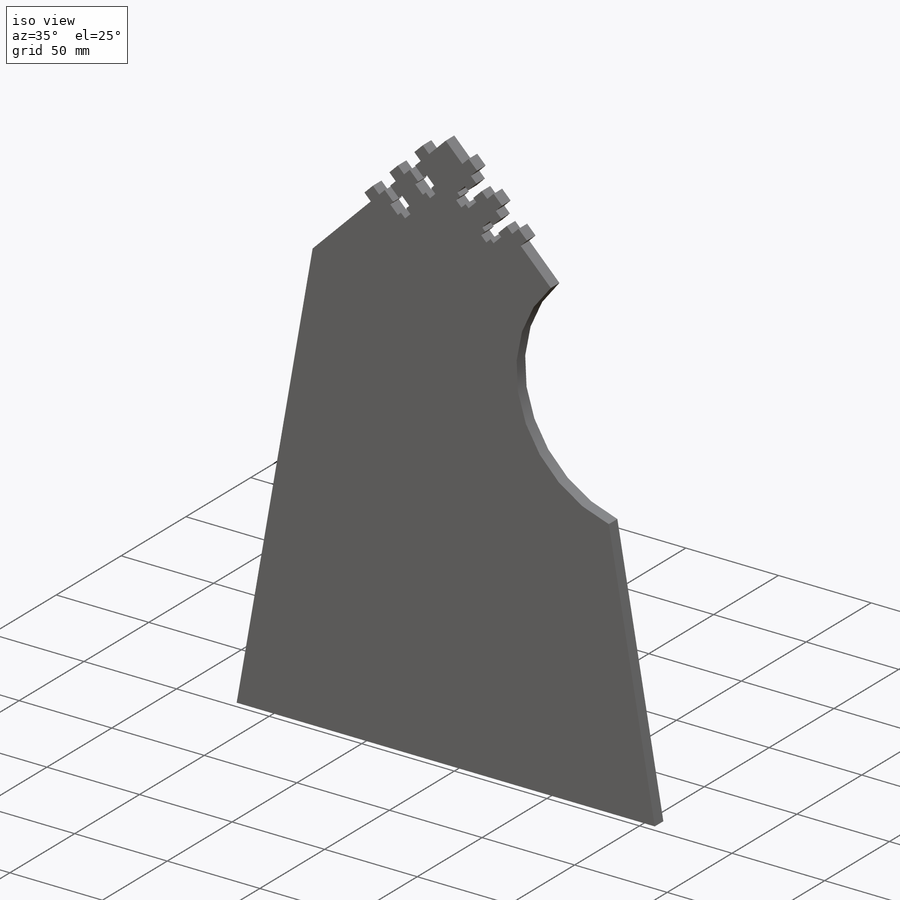
[diagram: iso view]
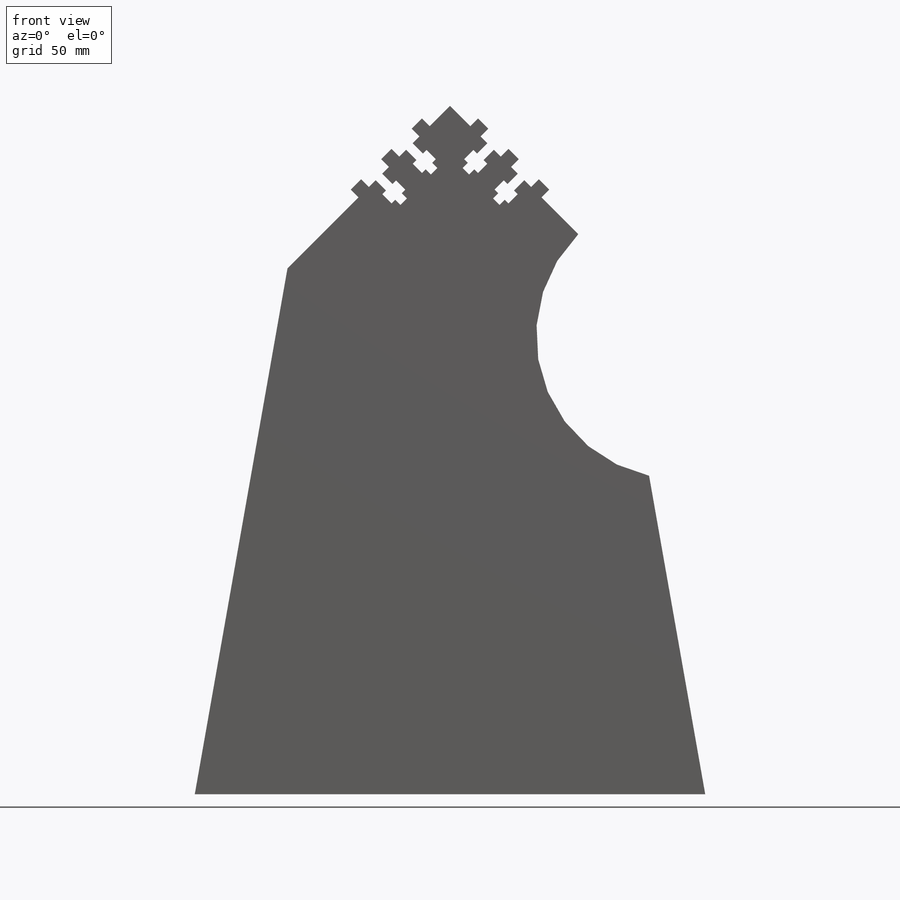
[diagram: front view]
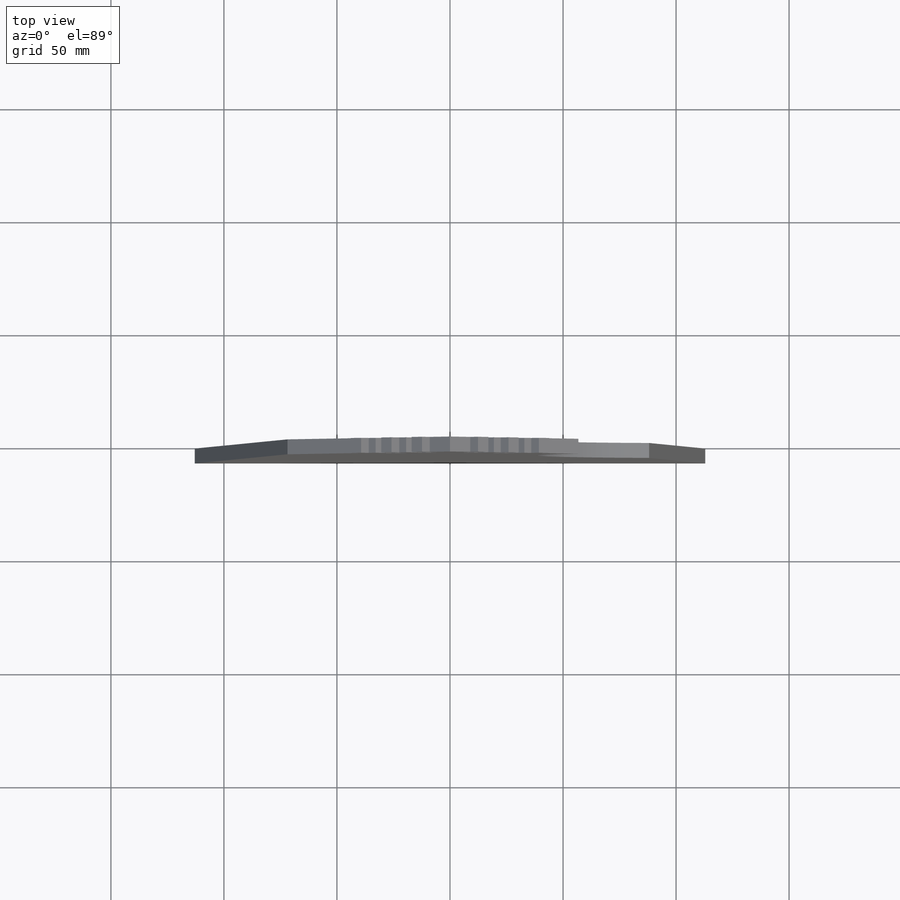
[diagram: top view]
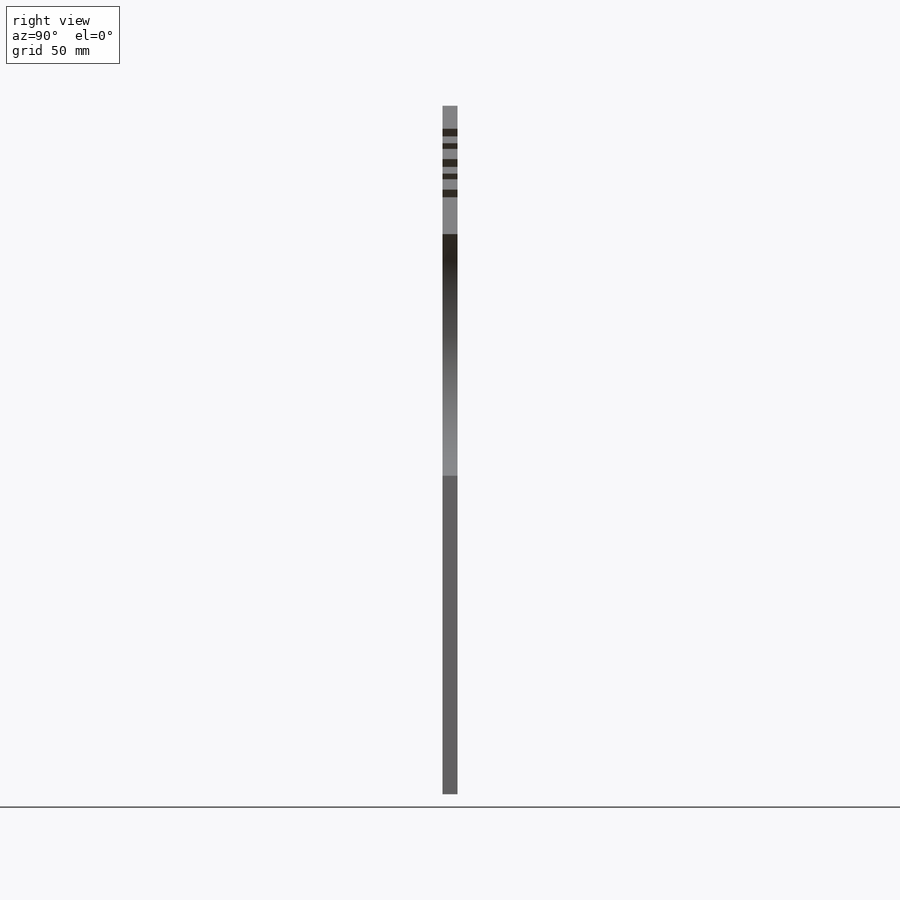
[diagram: right view]
SOLIDWORKS PART (.sldprt)
format: sldprt  version: not decoded by parser v0  size: 613,888 bytes
history: native  units: mm
features: sketch x5, extrude x2, cut_extrude x2, material x1 (+12 scaffold rows collapsed)
feature tree (22):
  scaffold x12  (default folders/planes/origin — collapsed)
  material  "Acrylic (Blue)"
  sketch  "Sketch1"  dims[c1.D1=304.8mm c1.D2=~76.84197mm c2.D2=120.0deg c2.D3=50.8mm c2.D1=304.8mm c2.D4=5.08mm c2.D5=12.7mm c2.D6=~266.326147mm c3.D1=~304.426147mm c3.D3=304.8mm c3.D2=101.6mm c4.D3=~103.509936mm c5.D3=~80.751682deg c6.D3=~143.684098mm c7.D3=100.0deg]
  extrude  "Boss-Extrude1"  Depth=6.604mm
  sketch  "Sketch2"  dims[c1.D1=6.35mm c1.D2=4.1656mm c1.D3=25.4mm c1.D4=4.826mm c1.D5=8.7376mm c1.D6=5.9436mm c1.D7=6.35mm c1.D8=20.32mm c1.D9=2.0 c1.NUT_HOLE_2X-2=65536.0 c2.D1=12.7mm c2.D2=12.7mm]
  sketch  "Sketch4"
  cut_extrude  "Cut-Extrude1"  [1 undecoded]
  sketch  "Sketch5"
  extrude  "Boss-Extrude2"  [1 undecoded]
  sketch  "Sketch6"  dims[D3=127.0mm D1=101.6mm D2=101.6mm]
  cut_extrude  "Cut-Extrude2"  Depth=0.0508mm
decode coverage: 5 of 9 modeling features carry decoded parameters
note: ~ marks probable driven/reference dimensions
note: 2 parameter values undecoded
note: suppression state not decoded; provenance and decode notes live in map.json
